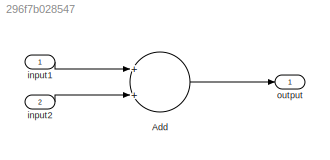
MODEL slx_296f7b028547
KIND model
CONFIG AbsTol = auto
CONFIG EnableMultiTasking = off
CONFIG FixedStep = auto
CONFIG MaxStep = auto
CONFIG MinStep = auto
CONFIG RelTol = 1e-3
CONFIG SampleTimeConstraint = Unconstrained
CONFIG Solver = FixedStepAuto
CONFIG SolverName = FixedStepAuto
CONFIG StartTime = 0.0
CONFIG StopTime = 10.0
BLOCK [Sum] Add
  InputSameDT = off
  OutDataTypeStr = Inherit: Inherit via internal rule
  Ports = [2, 1]
  SaturateOnIntegerOverflow = off
BLOCK [Inport] input1
  IconDisplay = Port number
BLOCK [Inport] input2
  IconDisplay = Port number
  Port = 2
BLOCK [Outport] output
  IconDisplay = Port number
LINE Add:1 -> output:1
LINE input1:1 -> Add:1
LINE input2:1 -> Add:2
